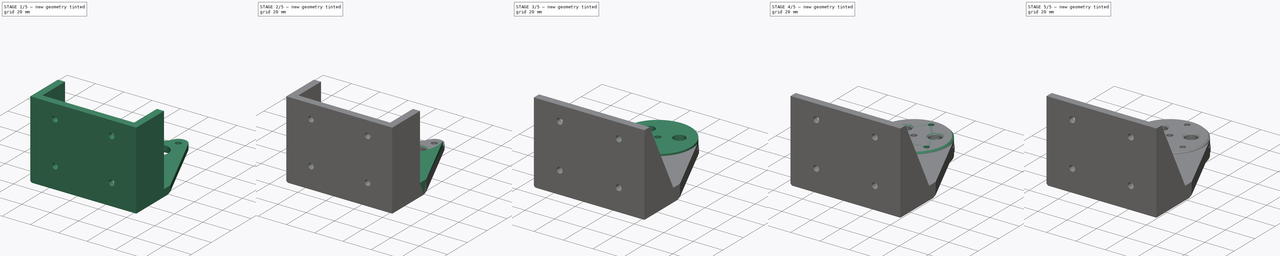
[diagram: build sequence overview — one tinted view per stage of 5, left to right]
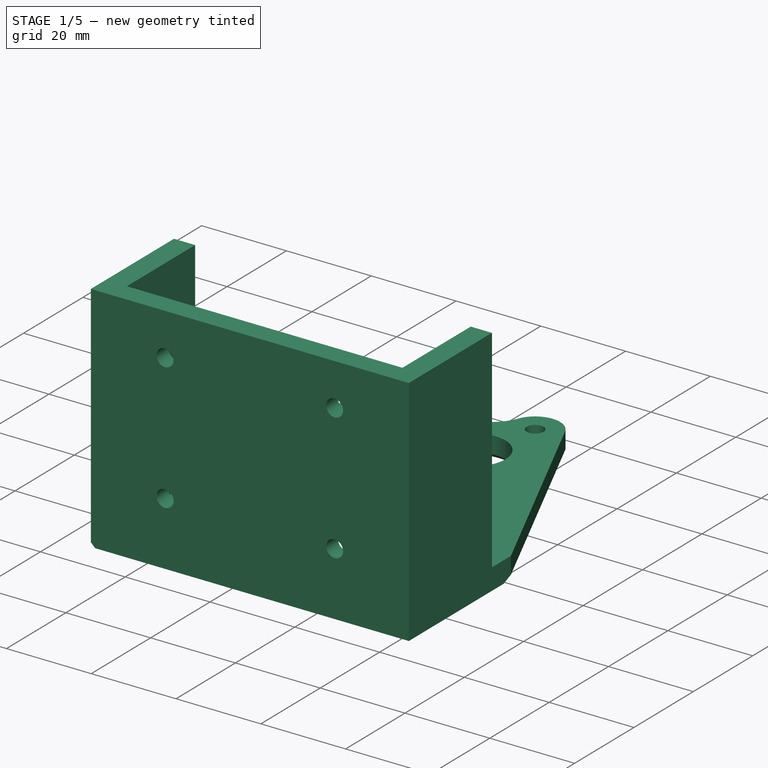
[diagram: stage 1 of 5 — iso view after this stage's code; geometry added in this stage tinted green]
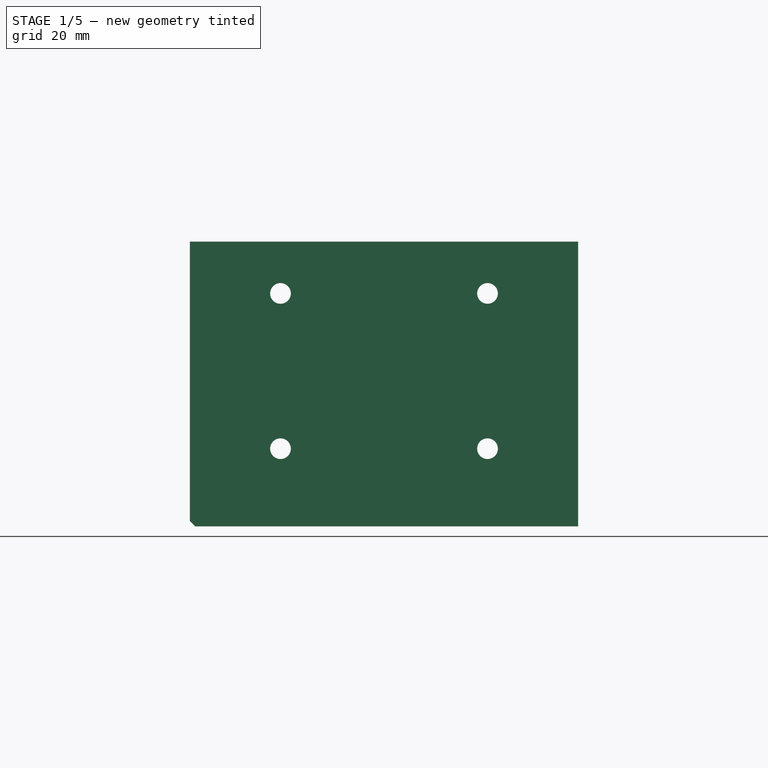
[diagram: stage 1 of 5 — front view after this stage's code; geometry added in this stage tinted green]
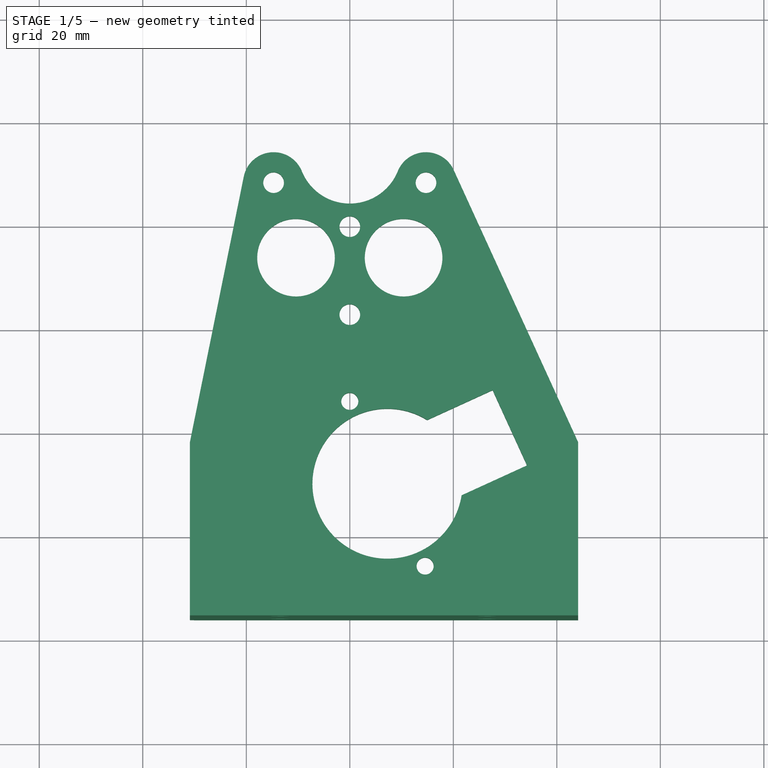
[diagram: stage 1 of 5 — top view after this stage's code; geometry added in this stage tinted green]
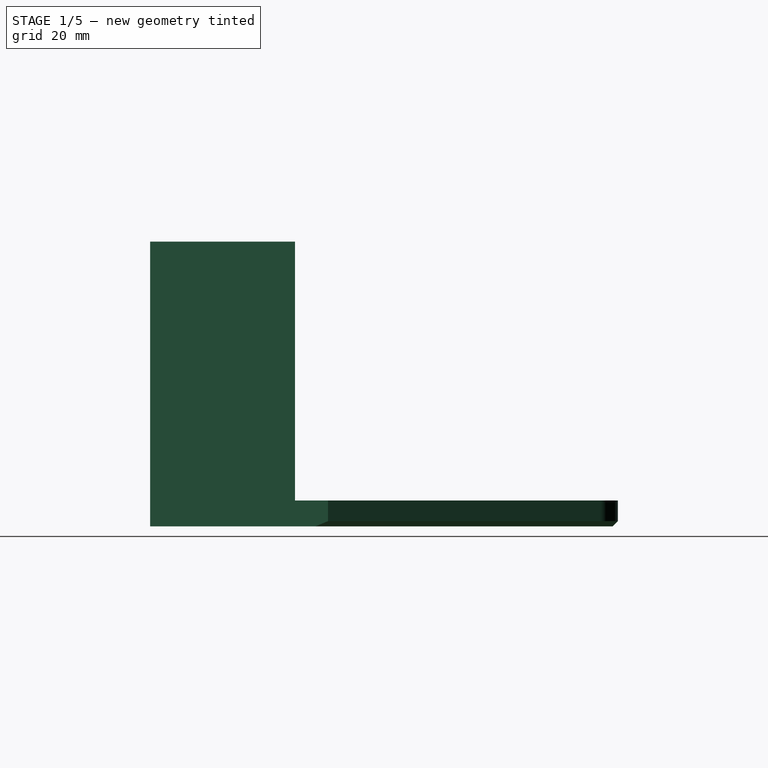
[diagram: stage 1 of 5 — right view after this stage's code; geometry added in this stage tinted green]
FCSTD DOCUMENT  (FreeCAD 1.0R38806 (Git))
Label: Valve
License: All rights reserved
LicenseURL: https://en.wikipedia.org/wiki/All_rights_reserved
objects: Sketcher::SketchObject×16, PartDesign::Chamfer×13, PartDesign::Pocket×10, PartDesign::Pad×6, PartDesign::Body×4, PartDesign::Fillet×2, PartDesign::FeaturePython×1
note: 131 computed .brp shape members not serialized (recipe doc carries the construction recipe); baked Part::Feature solids carry a one-line shape summary decoded from their .brp

FEATURE [PartDesign::Body] Body003  label="stationary_housing"
  AllowCompound = false
  Group = -> [Sketch006,Pad002,Sketch007,Pocket002,Sketch008,Pocket003,Sketch009,Pocket004,Chamfer003,Chamfer004,Chamfer005,Chamfer006]
  Origin = -> Origin003
  Placement = pos=(0,0,0) rot=(0,0,1;1.0472rad)
  Tip = -> Chamfer006
FEATURE [Sketcher::SketchObject] Sketch010
  ArcFitTolerance = 1e-06
  AttachmentSupport = -> [XY_Plane004]
  FullyConstrained = false
  MakeInternals = false
  MapMode = 5
  sketch-geometry (40):
    g0: Circle [constr] CenterX=0 CenterY=0 CenterZ=0 NormalX=0 NormalY=0 NormalZ=1 AngleXU=0 Radius=22
    g1: Circle [constr] CenterX=0 CenterY=-53 CenterZ=0 NormalX=0 NormalY=0 NormalZ=1 AngleXU=0 Radius=6.5
    g2: LineSegment [constr] StartX=6.21582 StartY=-54.9009 StartZ=0 EndX=21.0382 EndY=-6.43396 EndZ=0
    g3: LineSegment [constr] StartX=-6.21582 StartY=-54.9009 StartZ=0 EndX=-21.0382 EndY=-6.43396 EndZ=0
    g4: LineSegment [constr] StartX=0 StartY=0 StartZ=0 EndX=0 EndY=-53 EndZ=0
    g5: Circle [constr] CenterX=0 CenterY=-53 CenterZ=0 NormalX=0 NormalY=0 NormalZ=1 AngleXU=0 Radius=9
    g6: Circle CenterX=0 CenterY=0 CenterZ=0 NormalX=0 NormalY=0 NormalZ=1 AngleXU=0 Radius=2
    g7: Circle [constr] CenterX=0 CenterY=12 CenterZ=0 NormalX=0 NormalY=0 NormalZ=1 AngleXU=0 Radius=4.42235
    g8: Circle [constr] CenterX=10.3923 CenterY=-6 CenterZ=0 NormalX=0 NormalY=0 NormalZ=1 AngleXU=0 Radius=3.99316
    g9: Circle [constr] CenterX=-10.3923 CenterY=-6 CenterZ=0 NormalX=0 NormalY=0 NormalZ=1 AngleXU=0 Radius=3.67635
    g10: Circle [constr] CenterX=0 CenterY=0 CenterZ=0 NormalX=0 NormalY=0 NormalZ=1 AngleXU=0 Radius=17
    g11: Circle CenterX=-14.7224 CenterY=8.5 CenterZ=0 NormalX=0 NormalY=0 NormalZ=1 AngleXU=0 Radius=2
    g12: Circle CenterX=14.7224 CenterY=8.5 CenterZ=0 NormalX=0 NormalY=0 NormalZ=1 AngleXU=0 Radius=2
    g13: Circle CenterX=0 CenterY=-17 CenterZ=0 NormalX=0 NormalY=0 NormalZ=1 AngleXU=0 Radius=2
    g14: ArcOfCircle CenterX=0 CenterY=14.4564 CenterZ=0 NormalX=0 NormalY=0 NormalZ=1 AngleXU=0 Radius=10 StartAngle=3.52604 EndAngle=5.89874
    g15: ArcOfCircle CenterX=14.7224 CenterY=8.5 CenterZ=0 NormalX=0 NormalY=0 NormalZ=1 AngleXU=0 Radius=5.88171 StartAngle=0.428778 EndAngle=2.75714
    g16: LineSegment [constr] StartX=-14.7224 StartY=8.5 StartZ=0 EndX=14.7224 EndY=8.5 EndZ=0
    g17: LineSegment [constr] StartX=14.7224 StartY=8.5 StartZ=0 EndX=0 EndY=-17 EndZ=0
    g18: ArcOfCircle CenterX=-14.7224 CenterY=8.5 CenterZ=0 NormalX=0 NormalY=0 NormalZ=1 AngleXU=0 Radius=5.88171 StartAngle=0.384448 EndAngle=2.94147
    g19: LineSegment StartX=-20.4868 StartY=9.6692 StartZ=0 EndX=-30.8925 EndY=-41.6329 EndZ=0
    g20: LineSegment StartX=20.0717 StartY=10.9454 StartZ=0 EndX=44.1075 EndY=-41.6329 EndZ=0
    g21: LineSegment StartX=44.1075 StartY=-41.6329 StartZ=0 EndX=44.1075 EndY=-76 EndZ=0
    g22: LineSegment StartX=44.1075 StartY=-76 StartZ=0 EndX=-30.8925 EndY=-76 EndZ=0
    g23: LineSegment StartX=-30.8925 StartY=-76 StartZ=0 EndX=-30.8925 EndY=-41.6329 EndZ=0
    g24: Circle [constr] CenterX=7.2758 CenterY=-49.6739 CenterZ=0 NormalX=0 NormalY=0 NormalZ=1 AngleXU=0 Radius=14
    g25: LineSegment [constr] StartX=14.5516 StartY=-65.5897 StartZ=0 EndX=0 EndY=-33.7581 EndZ=0
    g26: LineSegment [constr] StartX=0 StartY=-53 StartZ=0 EndX=7.2758 EndY=-49.6739 EndZ=0
    g27: Circle CenterX=14.5516 CenterY=-65.5897 CenterZ=0 NormalX=0 NormalY=0 NormalZ=1 AngleXU=0 Radius=1.65
    g28: Circle CenterX=0 CenterY=-33.7581 CenterZ=0 NormalX=0 NormalY=0 NormalZ=1 AngleXU=0 Radius=1.65
    g29: Circle [constr] CenterX=0 CenterY=0 CenterZ=0 NormalX=0 NormalY=0 NormalZ=1 AngleXU=0 Radius=12
    g30: LineSegment [constr] StartX=-10.3923 StartY=-6 StartZ=0 EndX=10.3923 EndY=-6 EndZ=0
    g31: LineSegment [constr] StartX=10.3923 StartY=-6 StartZ=0 EndX=0 EndY=12 EndZ=0
    g32: Circle CenterX=10.3923 CenterY=-6 CenterZ=0 NormalX=0 NormalY=0 NormalZ=1 AngleXU=0 Radius=7.5
    g33: Circle CenterX=-10.3923 CenterY=-6 CenterZ=0 NormalX=0 NormalY=0 NormalZ=1 AngleXU=0 Radius=7.5
    g34: ArcOfCircle CenterX=7.2758 CenterY=-49.6739 CenterZ=0 NormalX=0 NormalY=0 NormalZ=1 AngleXU=0 Radius=14.5 StartAngle=1.01321 EndAngle=6.12753
    g35: LineSegment [constr] StartX=14.9483 StartY=-37.3702 StartZ=0 EndX=21.6005 EndY=-51.9218 EndZ=0
    g36: LineSegment StartX=14.9483 StartY=-37.3702 StartZ=0 EndX=27.5961 EndY=-31.5884 EndZ=0
    g37: LineSegment StartX=27.5961 StartY=-31.5884 StartZ=0 EndX=34.2482 EndY=-46.14 EndZ=0
    g38: LineSegment StartX=21.6005 StartY=-51.9218 StartZ=0 EndX=34.2482 EndY=-46.14 EndZ=0
    g39: LineSegment [constr] StartX=44.1075 StartY=-71 StartZ=0 EndX=-30.8925 EndY=-71 EndZ=0
  constraints (99):
    c: Coincident(g0,g-1)
    c: Diameter(g0) = 44
    c: PointOnObject(g1,g-2)
    c: Diameter(g1) = 13
    c: Tangent(g3,g0) = 1.5708
    c: Tangent(g3,g1) = 1.5708
    c: Tangent(g2,g1) = -1.5708
    c: Tangent(g2,g0) = -1.5708
    c: Distance(g3,g3) = 50.6828
    c: Coincident(g4,g0)
    c: Coincident(g4,g1)
    c: DistanceY(g4,g4) = 53
    c: Coincident(g5,g1)
    c: Diameter(g5) = 18
    c: Coincident(g6,g0)
    c: Diameter(g6) = 4
    c: PointOnObject(g7,g-2)
    c: Coincident(g10,g0)
    c: Diameter(g10) = 34
    c: PointOnObject(g11,g10)
    c: PointOnObject(g12,g10)
    c: PointOnObject(g13,g10)
    c: PointOnObject(g13,g-2)
    c: Equal(g13,g12)
    c: Equal(g12,g11)
    c: Diameter(g11) = 4
    c: PointOnObject(g14,g-2)
    c: Coincident(g15,g12)
    c: Coincident(g16,g11)
    c: Coincident(g16,g12)
    c: Coincident(g17,g12)
    c: Coincident(g17,g13)
    c: Equal(g17,g16)
    c: Horizontal(g16)
    c: Coincident(g18,g11)
    c: Tangent(g15,g14) = 1.5708
    c: Tangent(g18,g14) = 1.5708
    c: Tangent(g19,g0)
    c: Tangent(g20,g15) = 1.5708
    c: Tangent(g19,g18) = -1.5708
    c: Coincident(g21,g20)
    c: Vertical(g21)
    c: Coincident(g22,g21)
    c: Horizontal(g22)
    c: Coincident(g23,g22)
    c: Coincident(g23,g19)
    c: Vertical(g23)
    c: Distance(g1,g24) = 8
    c: Diameter(g24) = 28
    c: Coincident(g26,g1)
    c: Symmetric(g25,g25,g26)
    c: Perpendicular(g25,g26)
    c: PointOnObject(g24,g26)
    c: PointOnObject(g24,g25)
    c: Distance(g25,g25) = 35
    c: Coincident(g27,g25)
    c: Coincident(g28,g25)
    c: Equal(g27,g28)
    c: Diameter(g27) = 3.3
    c: PointOnObject(g25,g-2)
    c: DistanceX(g22,g22) = 75
    c: Coincident(g29,g0)
    c: PointOnObject(g8,g29)
    c: PointOnObject(g7,g29)
    c: PointOnObject(g9,g29)
    c: Coincident(g30,g9)
    c: Coincident(g30,g8)
    c: Horizontal(g30)
    c: Coincident(g31,g8)
    c: Coincident(g31,g7)
    c: Equal(g30,g31)
    c: Diameter(g29) = 24
    c: Radius(g14) = 10
    c: Coincident(g32,g8)
    c: Coincident(g33,g9)
    c: Equal(g33,g32)
    c: Diameter(g32) = 15
    c: Coincident(g34,g24)
    c: Coincident(g35,g34)
    c: Coincident(g35,g34)
    c: Distance(g35,g35) = 16
    c: Parallel(g35,g25)
    c: Diameter(g34) = 29
    c: Coincident(g36,g34)
    c: Coincident(g37,g36)
    c: Coincident(g38,g34)
    c: Coincident(g38,g37)
    c: Parallel(g36,g38)
    c: Perpendicular(g35,g36)
    c: Parallel(g37,g35)
    c: Distance(g36,g25) = 26
    c: PointOnObject(g39,g21)
    c: PointOnObject(g39,g23)
    c: Horizontal(g39)
    c: Distance(g39,g22) = 5
    c: DistanceY(g39,g1) = 18
    c: Parallel(g35,g20)
    c: Horizontal(g19,g20)
    c: PointOnObject(g20,g38)
FEATURE [PartDesign::Pad] Pad003
  Direction = (0,0,1)
  Length = 5
  Length2 = 10
  Profile = -> Sketch010
  ReferenceAxis = -> Sketch010 [N_Axis]
  Refine = true
  Suppressed = false
  Type = 0
FEATURE [Sketcher::SketchObject] Sketch011
  ArcFitTolerance = 1e-06
  FullyConstrained = true
  MakeInternals = false
  MapMode = 5
  Placement = pos=(0,0,5) rot=(0,0,1;0rad)
  sketch-geometry (9):
    g0: LineSegment StartX=44.1075 StartY=-48 StartZ=0 EndX=39.1075 EndY=-48 EndZ=0
    g1: LineSegment StartX=39.1075 StartY=-48 StartZ=0 EndX=39.1075 EndY=-71 EndZ=0
    g2: LineSegment StartX=39.1075 StartY=-71 StartZ=0 EndX=-25.8925 EndY=-71 EndZ=0
    g3: LineSegment StartX=-25.8925 StartY=-71 StartZ=0 EndX=-25.8925 EndY=-48 EndZ=0
    g4: LineSegment StartX=-25.8925 StartY=-48 StartZ=0 EndX=-30.8925 EndY=-48 EndZ=0
    g5: LineSegment StartX=-30.8925 StartY=-48 StartZ=0 EndX=-30.8925 EndY=-76 EndZ=0
    g6: LineSegment StartX=-30.8925 StartY=-76 StartZ=0 EndX=44.1075 EndY=-76 EndZ=0
    g7: LineSegment StartX=44.1075 StartY=-76 StartZ=0 EndX=44.1075 EndY=-48 EndZ=0
    g8: LineSegment [constr] StartX=39.1075 StartY=-71 StartZ=0 EndX=44.1075 EndY=-76 EndZ=0
  constraints (24):
    c: PointOnObject(g0,g-5)
    c: Horizontal(g0)
    c: Coincident(g0,g1)
    c: Vertical(g1)
    c: Coincident(g1,g2)
    c: Horizontal(g2)
    c: Coincident(g2,g3)
    c: Vertical(g3)
    c: Coincident(g3,g4)
    c: PointOnObject(g4,g-3)
    c: Horizontal(g4)
    c: Coincident(g4,g5)
    c: Coincident(g5,g-4)
    c: Coincident(g5,g6)
    c: Coincident(g6,g-5)
    c: Coincident(g6,g7)
    c: Coincident(g7,g0)
    c: Horizontal(g0,g3)
    c: Coincident(g8,g1)
    c: Coincident(g8,g6)
    c: Angle(g8,g6) = 0.785398
    c: Distance(g0,g0) = 5
    c: DistanceY(g7,g7) = 28
    c: Equal(g4,g0)
FEATURE [PartDesign::Pad] Pad004
  BaseFeature = -> Pad003
  Direction = (0,0,1)
  Length = 50
  Length2 = 10
  Profile = -> Sketch011
  ReferenceAxis = -> Sketch011 [N_Axis]
  Refine = true
  Suppressed = false
  Type = 0
FEATURE [Sketcher::SketchObject] Sketch013
  ArcFitTolerance = 1e-06
  FullyConstrained = true
  MakeInternals = false
  MapMode = 5
  Placement = pos=(0,-71,0) rot=(0,0.707107,0.707107;3.14159rad)
  sketch-geometry (11):
    g0: Circle CenterX=13.3925 CenterY=45 CenterZ=0 NormalX=0 NormalY=0 NormalZ=1 AngleXU=0 Radius=2
    g1: LineSegment [constr] StartX=-26.6075 StartY=15 StartZ=0 EndX=13.3925 EndY=15 EndZ=0
    g2: LineSegment [constr] StartX=13.3925 StartY=15 StartZ=0 EndX=13.3925 EndY=45 EndZ=0
    g3: LineSegment [constr] StartX=13.3925 StartY=45 StartZ=0 EndX=-26.6075 EndY=45 EndZ=0
    g4: LineSegment [constr] StartX=-26.6075 StartY=45 StartZ=0 EndX=-26.6075 EndY=15 EndZ=0
    g5: GeomPoint [constr] X=-6.60747 Y=30 Z=0
    g6: LineSegment [constr] StartX=25.8925 StartY=5 StartZ=0 EndX=-39.1075 EndY=55 EndZ=0
    g7: LineSegment [constr] StartX=25.8925 StartY=55 StartZ=0 EndX=-39.1075 EndY=5 EndZ=0
    g8: Circle CenterX=13.3925 CenterY=15 CenterZ=0 NormalX=0 NormalY=0 NormalZ=1 AngleXU=0 Radius=2
    g9: Circle CenterX=-26.6075 CenterY=15 CenterZ=0 NormalX=0 NormalY=0 NormalZ=1 AngleXU=0 Radius=2
    g10: Circle CenterX=-26.6075 CenterY=45 CenterZ=0 NormalX=0 NormalY=0 NormalZ=1 AngleXU=0 Radius=2
  constraints (25):
    c: Coincident(g1,g2)
    c: Coincident(g2,g3)
    c: Coincident(g3,g4)
    c: Coincident(g4,g1)
    c: Horizontal(g1)
    c: Horizontal(g3)
    c: Vertical(g2)
    c: Vertical(g4)
    c: Symmetric(g3,g1,g5)
    c: Coincident(g2,g0)
    c: Coincident(g6,g-4)
    c: Coincident(g6,g-3)
    c: Coincident(g7,g-4)
    c: Coincident(g7,g-3)
    c: Distance(g3,g3) = 40
    c: PointOnObject(g5,g6)
    c: PointOnObject(g5,g7)
    c: DistanceY(g2,g2) = 30
    c: Diameter(g0) = 4
    c: Coincident(g8,g1)
    c: Coincident(g9,g1)
    c: Coincident(g10,g3)
    c: Equal(g10,g0)
    c: Equal(g0,g8)
    c: Equal(g8,g9)
FEATURE [PartDesign::Pocket] Pocket006
  BaseFeature = -> Pad004
  Direction = (0,-1,2e-16)
  Length = 5
  Length2 = 5
  Profile = -> Sketch013
  ReferenceAxis = -> Sketch013 [N_Axis]
  Refine = true
  Suppressed = false
  Type = 1
FEATURE [PartDesign::Chamfer] Chamfer008
  Angle = 45
  Base = -> Pocket006 [Edge82,Edge80,Edge81,Edge83]
  BaseFeature = -> Pocket006
  ChamferType = 0
  FlipDirection = false
  Refine = true
  Size = 1
  Size2 = 1
  SupportTransform = false
  Suppressed = false
  UseAllEdges = false
FEATURE [PartDesign::Chamfer] Chamfer009
  Angle = 45
  Base = -> Chamfer008 [Edge67,Edge64,Edge66]
  BaseFeature = -> Chamfer008
  ChamferType = 0
  FlipDirection = false
  Refine = true
  Size = 1
  Size2 = 1
  SupportTransform = false
  Suppressed = false
  UseAllEdges = false
FEATURE [PartDesign::Chamfer] Chamfer010
  Angle = 45
  Base = -> Chamfer009 [Edge51,Edge50,Edge54,Edge55,Edge52,Edge53]
  BaseFeature = -> Chamfer009
  ChamferType = 0
  FlipDirection = false
  Refine = true
  Size = 1
  Size2 = 1
  SupportTransform = false
  Suppressed = false
  UseAllEdges = false
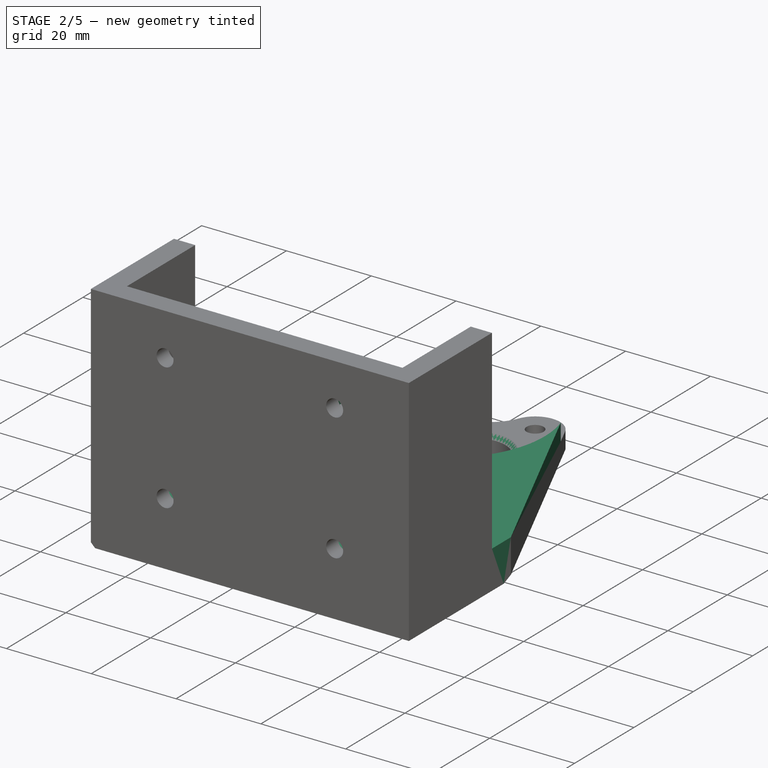
[diagram: stage 2 of 5 — iso view after this stage's code; geometry added in this stage tinted green]
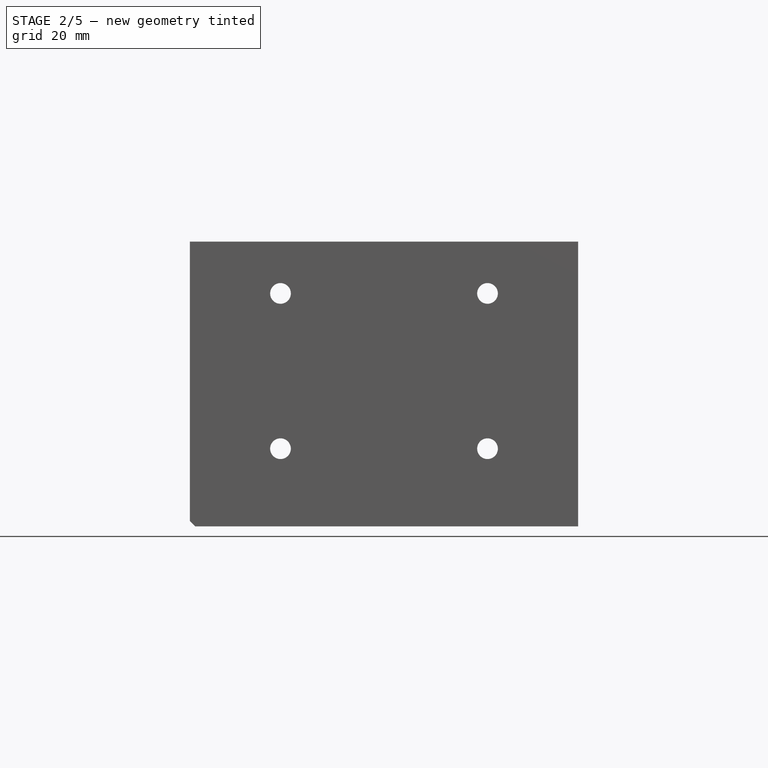
[diagram: stage 2 of 5 — front view after this stage's code; geometry added in this stage tinted green]
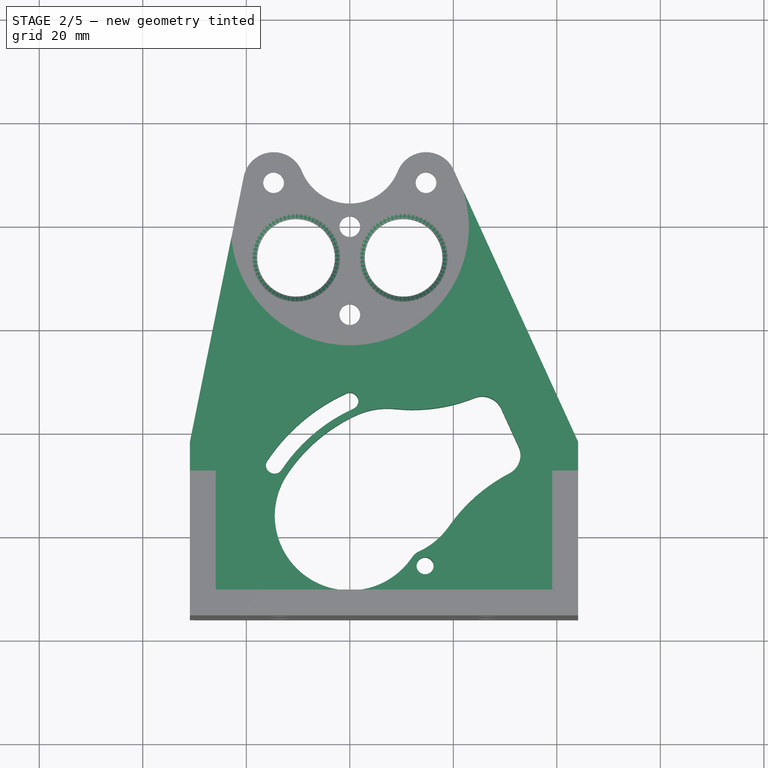
[diagram: stage 2 of 5 — top view after this stage's code; geometry added in this stage tinted green]
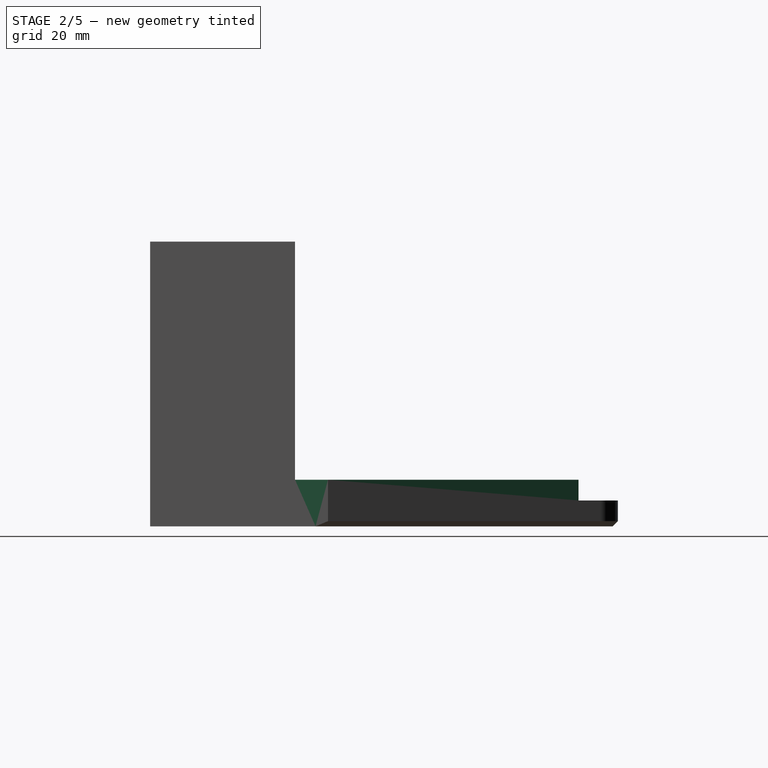
[diagram: stage 2 of 5 — right view after this stage's code; geometry added in this stage tinted green]
FEATURE [PartDesign::Chamfer] Chamfer011
  Angle = 45
  Base = -> Chamfer010 [Edge84,Edge70]
  BaseFeature = -> Chamfer010
  ChamferType = 0
  FlipDirection = false
  Refine = true
  Size = 1
  Size2 = 1
  SupportTransform = false
  Suppressed = false
  UseAllEdges = false
FEATURE [Sketcher::SketchObject] Sketch014
  ArcFitTolerance = 1e-06
  AttachmentSupport = -> [Chamfer011]
  FullyConstrained = true
  MakeInternals = false
  MapMode = 5
  Placement = pos=(0,0,5) rot=(0,0,1;0rad)
  sketch-geometry (4):
    g0: ArcOfCircle CenterX=12.1061 CenterY=-2.79713 CenterZ=0 NormalX=0 NormalY=0 NormalZ=1 AngleXU=0 Radius=32.625 StartAngle=4.60971 EndAngle=5.14117
    g1: ArcOfCircle CenterX=45.8866 CenterY=-76.6919 CenterZ=0 NormalX=0 NormalY=0 NormalZ=1 AngleXU=0 Radius=32.625 StartAngle=1.99957 EndAngle=2.53103
    g2: LineSegment StartX=8.76204 StartY=-35.2503 StartZ=0 EndX=19.156 EndY=-57.9872 EndZ=0
    g3: LineSegment StartX=32.3224 StartY=-47.0203 StartZ=0 EndX=25.6703 EndY=-32.4687 EndZ=0
  constraints (10):
    c: Tangent(g0,g-3) = 1.5708
    c: Tangent(g0,g-4) = -1.5708
    c: Tangent(g1,g-5) = 1.5708
    c: Tangent(g1,g-6) = 1.5708
    c: Equal(g1,g0)
    c: Coincident(g2,g0)
    c: Coincident(g2,g1)
    c: Coincident(g3,g1)
    c: Coincident(g3,g0)
    c: Distance(g2,g2) = 25
FEATURE [PartDesign::Pocket] Pocket007
  BaseFeature = -> Chamfer011
  Direction = (0,0,-1)
  Length = 5
  Length2 = 5
  Profile = -> Sketch014
  ReferenceAxis = -> Sketch014 [N_Axis]
  Refine = true
  Suppressed = false
  Type = 1
FEATURE [Sketcher::SketchObject] Sketch015
  ArcFitTolerance = 1e-06
  AttachmentSupport = -> [Pocket007]
  ExternalGeometry = -> [Pocket007]
  FullyConstrained = true
  MakeInternals = false
  MapMode = 5
  Placement = pos=(0,0,5) rot=(0,0,1;0rad)
  sketch-geometry (14):
    g0: Circle [constr] CenterX=0 CenterY=-55.8686 CenterZ=0 NormalX=0 NormalY=0 NormalZ=1 AngleXU=0 Radius=14.5
    g1: LineSegment [constr] StartX=14.5516 StartY=-65.5897 StartZ=0 EndX=7.2758 EndY=-49.6739 EndZ=0
    g2: LineSegment [constr] StartX=14.5516 StartY=-65.5897 StartZ=0 EndX=0 EndY=-55.8686 EndZ=0
    g3: LineSegment [constr] StartX=7.2758 StartY=-49.6739 StartZ=0 EndX=0 EndY=-33.7581 EndZ=0
    g4: LineSegment [constr] StartX=0 StartY=-55.8686 StartZ=0 EndX=-14.5516 EndY=-46.1474 EndZ=0
    g5: Circle [constr] CenterX=-14.5516 CenterY=-46.1474 CenterZ=0 NormalX=0 NormalY=0 NormalZ=1 AngleXU=0 Radius=1.65
    g6: ArcOfCircle CenterX=14.5516 CenterY=-65.5897 CenterZ=0 NormalX=0 NormalY=0 NormalZ=1 AngleXU=0 Radius=33.35 StartAngle=1.99957 EndAngle=2.55263
    g7: ArcOfCircle CenterX=14.5516 CenterY=-65.5897 CenterZ=0 NormalX=0 NormalY=0 NormalZ=1 AngleXU=0 Radius=36.65 StartAngle=1.99957 EndAngle=2.55263
    g8: ArcOfCircle CenterX=-14.5516 CenterY=-46.1474 CenterZ=0 NormalX=0 NormalY=0 NormalZ=1 AngleXU=0 Radius=1.65 StartAngle=2.55263 EndAngle=5.69423
    g9: ArcOfCircle CenterX=0 CenterY=-33.7581 CenterZ=0 NormalX=0 NormalY=0 NormalZ=1 AngleXU=0 Radius=1.65 StartAngle=5.14117 EndAngle=8.28276
    g10: ArcOfCircle CenterX=14.5516 CenterY=-65.5897 CenterZ=0 NormalX=0 NormalY=0 NormalZ=1 AngleXU=0 Radius=32 StartAngle=1.99957 EndAngle=2.55263
    g11: ArcOfCircle CenterX=0 CenterY=-55.8686 CenterZ=0 NormalX=0 NormalY=0 NormalZ=1 AngleXU=0 Radius=14.5 StartAngle=2.55263 EndAngle=5.69423
    g12: ArcOfCircle CenterX=14.5516 CenterY=-65.5897 CenterZ=0 NormalX=0 NormalY=0 NormalZ=1 AngleXU=0 Radius=3 StartAngle=1.99957 EndAngle=2.55264
    g13: LineSegment StartX=13.3043 StartY=-62.8613 StartZ=0 EndX=1.24728 EndY=-36.4865 EndZ=0
  constraints (35):
    c: Radius(g-4) = 14.5
    c: Equal(g0,g-4)
    c: Coincident(g1,g-7)
    c: Coincident(g1,g-4)
    c: Coincident(g2,g1)
    c: Coincident(g3,g1)
    c: Coincident(g3,g-6)
    c: Equal(g2,g1)
    c: Coincident(g0,g2)
    c: Coincident(g4,g0)
    c: Parallel(g2,g4)
    c: Coincident(g5,g4)
    c: Coincident(g6,g1)
    c: Tangent(g6,g-6) = 1.5708
    c: Tangent(g6,g5) = 1.5708
    c: Coincident(g7,g1)
    c: Tangent(g7,g-6) = -1.5708
    c: Tangent(g7,g5) = -1.5708
    c: Coincident(g9,g3)
    c: Coincident(g9,g7)
    c: Coincident(g8,g6)
    c: Coincident(g8,g7)
    c: PointOnObject(g0,g-2)
    c: Equal(g5,g8)
    c: PointOnObject(g9,g6)
    c: Coincident(g10,g1)
    c: PointOnObject(g10,g4)
    c: Tangent(g10,g-3) = -1.5708
    c: Coincident(g11,g0)
    c: Coincident(g11,g10)
    c: Coincident(g12,g1)
    c: Coincident(g13,g12)
    c: Coincident(g13,g10)
    c: Coincident(g12,g11)
    c: Tangent(g12,g-4) = 1.5708
FEATURE [PartDesign::Pocket] Pocket008
  BaseFeature = -> Pocket007
  Direction = (0,0,-1)
  Length = 5
  Length2 = 5
  Profile = -> Sketch015
  ReferenceAxis = -> Sketch015 [N_Axis]
  Refine = true
  Suppressed = false
  Type = 1
FEATURE [PartDesign::Pad] Pad005
  BaseFeature = -> Pocket008
  Direction = (0,0,1)
  Length = 4
  Length2 = 10
  Profile = -> Pocket008 [Face4]
  Refine = true
  Suppressed = false
  Type = 0
FEATURE [Sketcher::SketchObject] Sketch017
  ArcFitTolerance = 1e-06
  AttachmentSupport = -> [Pad005]
  FullyConstrained = true
  MakeInternals = false
  MapMode = 5
  Placement = pos=(0,0,9) rot=(0,0,1;0rad)
  sketch-geometry (1):
    g0: Circle CenterX=0 CenterY=0 CenterZ=0 NormalX=0 NormalY=0 NormalZ=1 AngleXU=0 Radius=23
  constraints (2):
    c: Coincident(g0,g-1)
    c: Diameter(g0) = 46
FEATURE [PartDesign::Pocket] Pocket009
  BaseFeature = -> Pad005
  Direction = (0,0,-1)
  Length = 4
  Length2 = 5
  Profile = -> Sketch017
  ReferenceAxis = -> Sketch017 [N_Axis]
  Refine = true
  Suppressed = false
  Type = 0
FEATURE [PartDesign::Fillet] Fillet
  Base = -> Pocket009 [Edge119]
  BaseFeature = -> Pocket009
  Radius = 4
  Refine = true
  SupportTransform = false
  Suppressed = false
  UseAllEdges = false
FEATURE [PartDesign::Fillet] Fillet001
  Base = -> Fillet [Edge32]
  BaseFeature = -> Fillet
  Radius = 4
  Refine = true
  SupportTransform = false
  Suppressed = false
  UseAllEdges = false
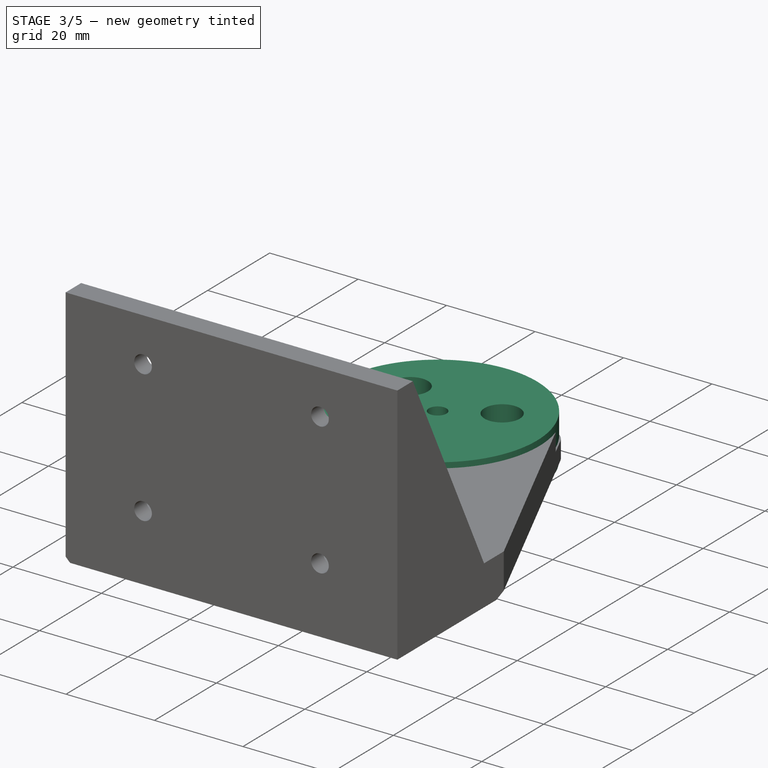
[diagram: stage 3 of 5 — iso view after this stage's code; geometry added in this stage tinted green]
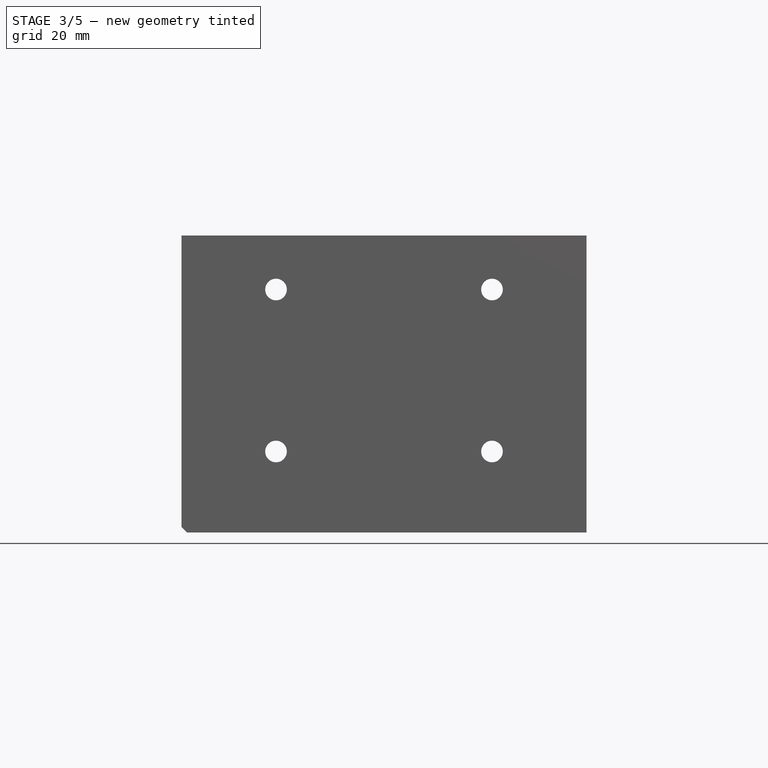
[diagram: stage 3 of 5 — front view after this stage's code; geometry added in this stage tinted green]
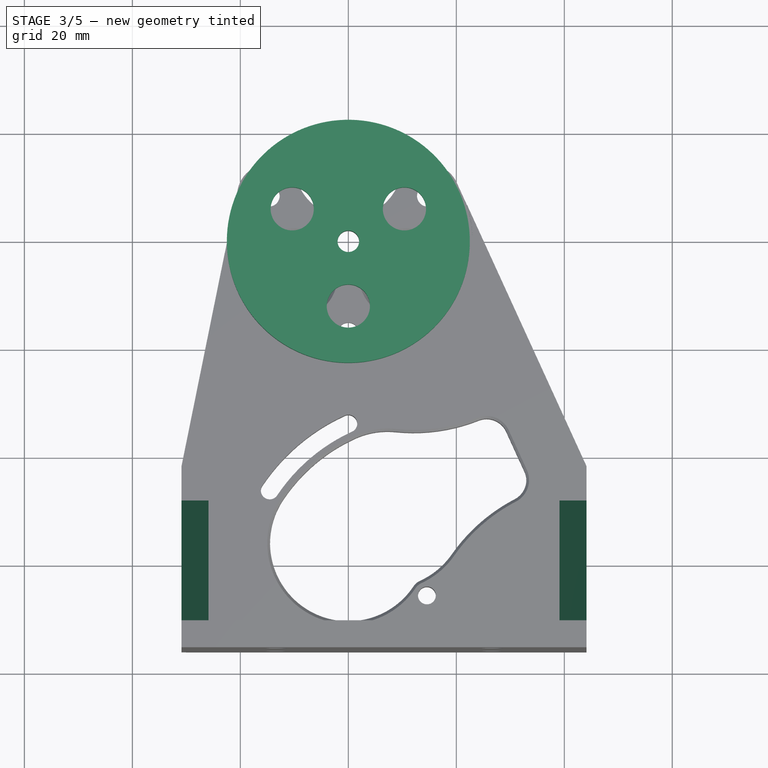
[diagram: stage 3 of 5 — top view after this stage's code; geometry added in this stage tinted green]
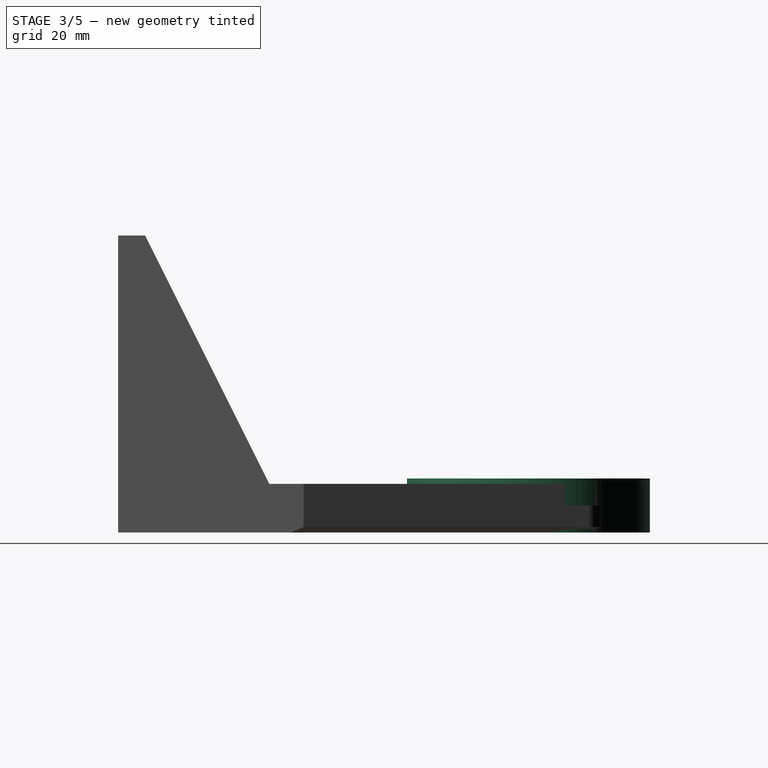
[diagram: stage 3 of 5 — right view after this stage's code; geometry added in this stage tinted green]
FEATURE [PartDesign::Body] Body002  label="mobile_housing"
  AllowCompound = false
  Group = -> [TimingGear,Sketch001,Pad,Sketch002,Pad001,Sketch003,Pocket,Sketch004,Pocket001,Chamfer,Chamfer001,Chamfer002]
  Origin = -> Origin002
  Placement = pos=(1.4e-15,0,-5) rot=(0.5,0.866025,0;3.14159rad)
  Tip = -> Chamfer002
FEATURE [Sketcher::SketchObject] Sketch006
  ArcFitTolerance = 1e-06
  AttachmentSupport = -> [XY_Plane003]
  FullyConstrained = true
  MakeInternals = false
  MapMode = 5
  sketch-geometry (1):
    g0: Circle CenterX=0 CenterY=0 CenterZ=0 NormalX=0 NormalY=0 NormalZ=1 AngleXU=0 Radius=22.5
  constraints (2):
    c: Coincident(g0,g-1)
    c: Diameter(g0) = 45
FEATURE [PartDesign::Pad] Pad002
  Direction = (0,0,1)
  Length = 10
  Length2 = 10
  Profile = -> Sketch006
  ReferenceAxis = -> Sketch006 [N_Axis]
  Refine = true
  Suppressed = false
  Type = 0
FEATURE [Sketcher::SketchObject] Sketch007
  ArcFitTolerance = 1e-06
  AttachmentSupport = -> [Pad002]
  FullyConstrained = true
  MakeInternals = false
  MapMode = 5
  Placement = pos=(0,0,0) rot=(1,0,0;3.14159rad)
  sketch-geometry (1):
    g0: Circle CenterX=0 CenterY=0 CenterZ=0 NormalX=0 NormalY=0 NormalZ=1 AngleXU=0 Radius=20
  constraints (2):
    c: Coincident(g0,g-1)
    c: Diameter(g0) = 40
FEATURE [PartDesign::Pocket] Pocket002
  BaseFeature = -> Pad002
  Direction = (0,0,1)
  Length = 5
  Length2 = 5
  Profile = -> Sketch007
  ReferenceAxis = -> Sketch007 [N_Axis]
  Refine = true
  Suppressed = false
  Type = 0
FEATURE [Sketcher::SketchObject] Sketch008
  ArcFitTolerance = 1e-06
  AttachmentSupport = -> [Pocket002]
  FullyConstrained = true
  MakeInternals = false
  MapMode = 5
  Placement = pos=(0,0,5) rot=(1,0,0;3.14159rad)
  sketch-geometry (7):
    g0: Circle CenterX=0 CenterY=12 CenterZ=0 NormalX=0 NormalY=0 NormalZ=1 AngleXU=0 Radius=4
    g1: Circle [constr] CenterX=0 CenterY=0 CenterZ=0 NormalX=0 NormalY=0 NormalZ=1 AngleXU=0 Radius=12
    g2: Circle CenterX=0 CenterY=0 CenterZ=0 NormalX=0 NormalY=0 NormalZ=1 AngleXU=0 Radius=2
    g3: Circle CenterX=10.3923 CenterY=-6 CenterZ=0 NormalX=0 NormalY=0 NormalZ=1 AngleXU=0 Radius=4
    g4: Circle CenterX=-10.3923 CenterY=-6 CenterZ=0 NormalX=0 NormalY=0 NormalZ=1 AngleXU=0 Radius=4
    g5: LineSegment [constr] StartX=-10.3923 StartY=-6 StartZ=0 EndX=10.3923 EndY=-6 EndZ=0
    g6: LineSegment [constr] StartX=10.3923 StartY=-6 StartZ=0 EndX=0 EndY=12 EndZ=0
  constraints (17):
    c: PointOnObject(g0,g-2)
    c: Diameter(g0) = 8
    c: Coincident(g1,g-1)
    c: PointOnObject(g0,g1)
    c: Diameter(g1) = 24
    c: Coincident(g2,g1)
    c: Diameter(g2) = 4
    c: PointOnObject(g3,g1)
    c: PointOnObject(g4,g1)
    c: Coincident(g5,g4)
    c: Coincident(g5,g3)
    c: Horizontal(g5)
    c: Coincident(g6,g3)
    c: Coincident(g6,g0)
    c: Equal(g5,g6)
    c: Equal(g3,g4)
    c: Equal(g4,g0)
FEATURE [PartDesign::Pocket] Pocket003
  BaseFeature = -> Pocket002
  Direction = (0,0,1)
  Length = 5
  Length2 = 5
  Profile = -> Sketch008
  ReferenceAxis = -> Sketch008 [N_Axis]
  Refine = true
  Suppressed = false
  Type = 0
FEATURE [Sketcher::SketchObject] Sketch018
  ArcFitTolerance = 1e-06
  AttachmentSupport = -> [Fillet001]
  ExternalGeometry = -> [Fillet001]
  FullyConstrained = true
  MakeInternals = false
  MapMode = 5
  Placement = pos=(-30.8925,1.246e-13,-1.196e-13) rot=(-0.57735,0.57735,0.57735;4.18879rad)
  sketch-geometry (3):
    g0: LineSegment StartX=48 StartY=9 StartZ=0 EndX=48 EndY=55 EndZ=0
    g1: LineSegment StartX=48 StartY=55 StartZ=0 EndX=71 EndY=55 EndZ=0
    g2: LineSegment StartX=71 StartY=55 StartZ=0 EndX=48 EndY=9 EndZ=0
  constraints (6):
    c: Coincident(g-3,g0)
    c: Coincident(g0,g-5)
    c: Coincident(g0,g1)
    c: Coincident(g1,g-5)
    c: Coincident(g1,g2)
    c: Coincident(g2,g0)
FEATURE [PartDesign::Pocket] Pocket010
  BaseFeature = -> Fillet001
  Direction = (1,-4.2e-15,3.9e-15)
  Length = 5
  Length2 = 5
  Profile = -> Sketch018
  ReferenceAxis = -> Sketch018 [N_Axis]
  Refine = true
  Suppressed = false
  Type = 1
FEATURE [PartDesign::Chamfer] Chamfer012
  Angle = 45
  Base = -> Pocket010 [Edge5]
  BaseFeature = -> Pocket010
  ChamferType = 0
  FlipDirection = false
  Refine = true
  Size = 0.5
  Size2 = 1
  SupportTransform = false
  Suppressed = false
  UseAllEdges = false
FEATURE [PartDesign::Chamfer] Chamfer013
  Angle = 45
  Base = -> Chamfer012 [Edge104]
  BaseFeature = -> Chamfer012
  ChamferType = 0
  FlipDirection = false
  Refine = true
  Size = 0.5
  Size2 = 1
  SupportTransform = false
  Suppressed = false
  UseAllEdges = false
FEATURE [PartDesign::Body] Body004  label="valve_base"
  AllowCompound = false
  Group = -> [Sketch010,Pad003,Sketch011,Pad004,Sketch013,Pocket006,Chamfer008,Chamfer009,Chamfer010,Chamfer011,Sketch014,Pocket007,Sketch015,Pocket008,Pad005,Sketch017,Pocket009,Fillet,Fillet001,Sketch018,Pocket010,Chamfer012,Chamfer013]
  Origin = -> Origin004
  Placement = pos=(-1.8e-15,0,15) rot=(0,1,0;3.14159rad)
  Tip = -> Chamfer013
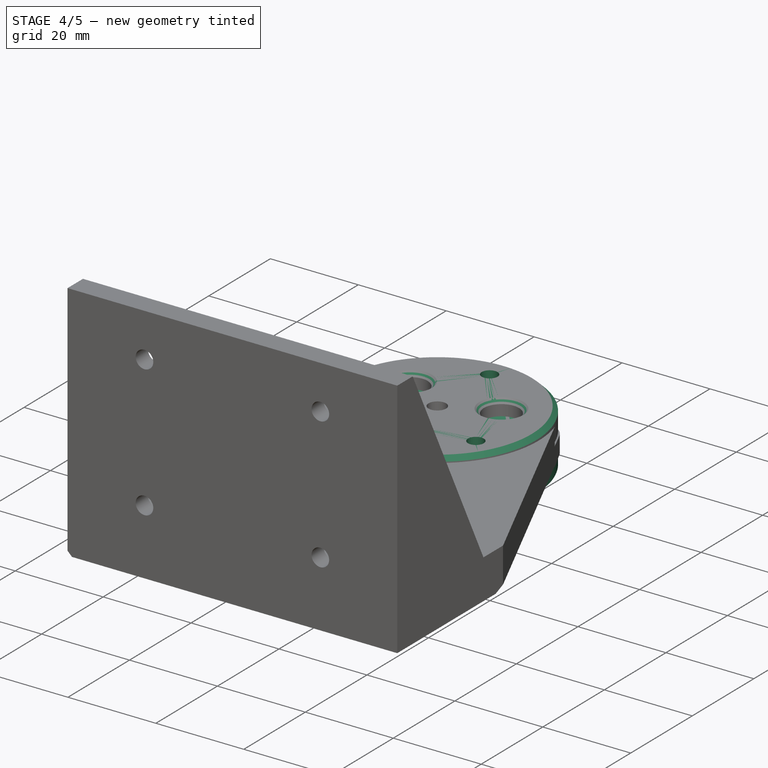
[diagram: stage 4 of 5 — iso view after this stage's code; geometry added in this stage tinted green]
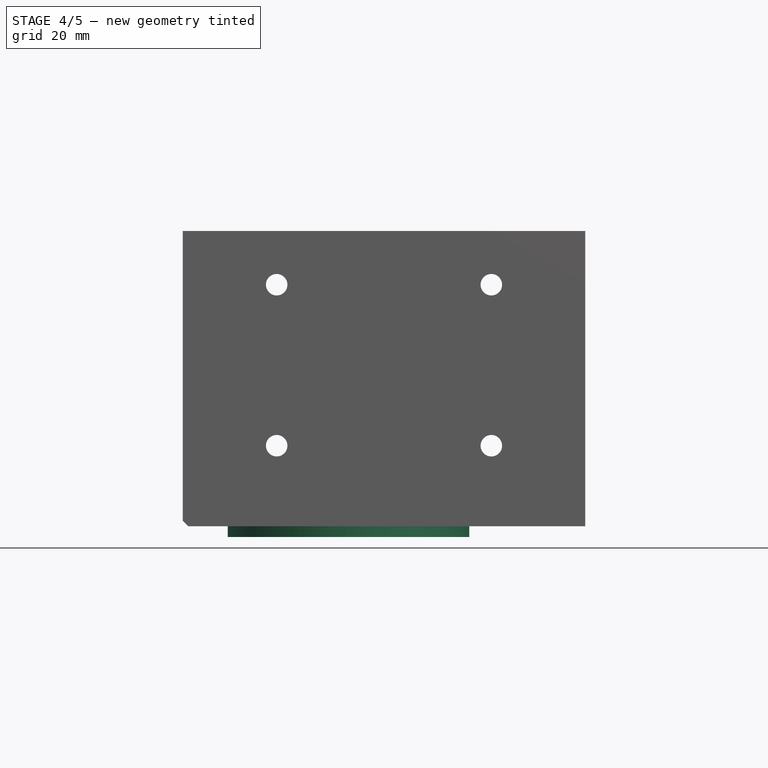
[diagram: stage 4 of 5 — front view after this stage's code; geometry added in this stage tinted green]
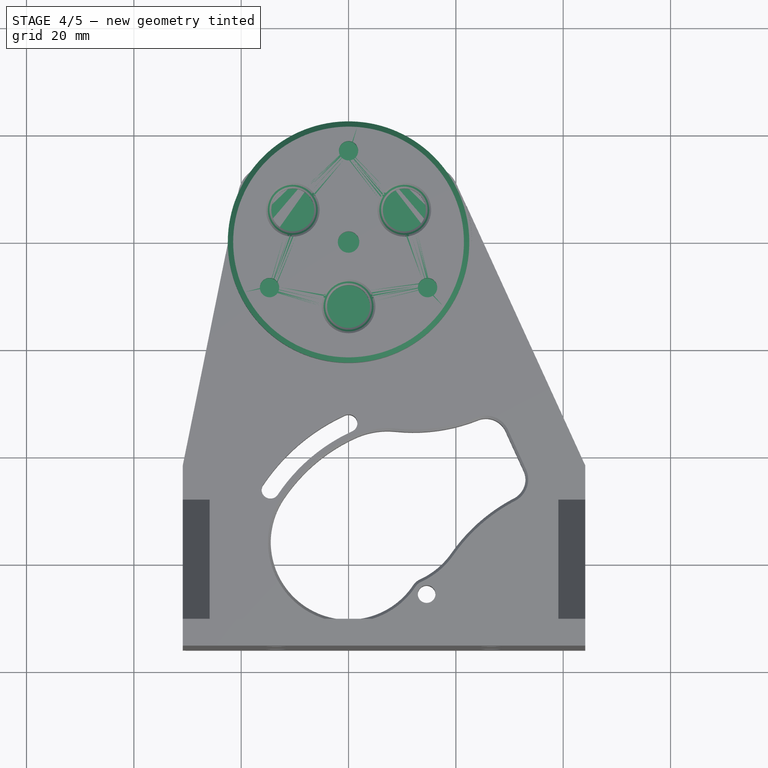
[diagram: stage 4 of 5 — top view after this stage's code; geometry added in this stage tinted green]
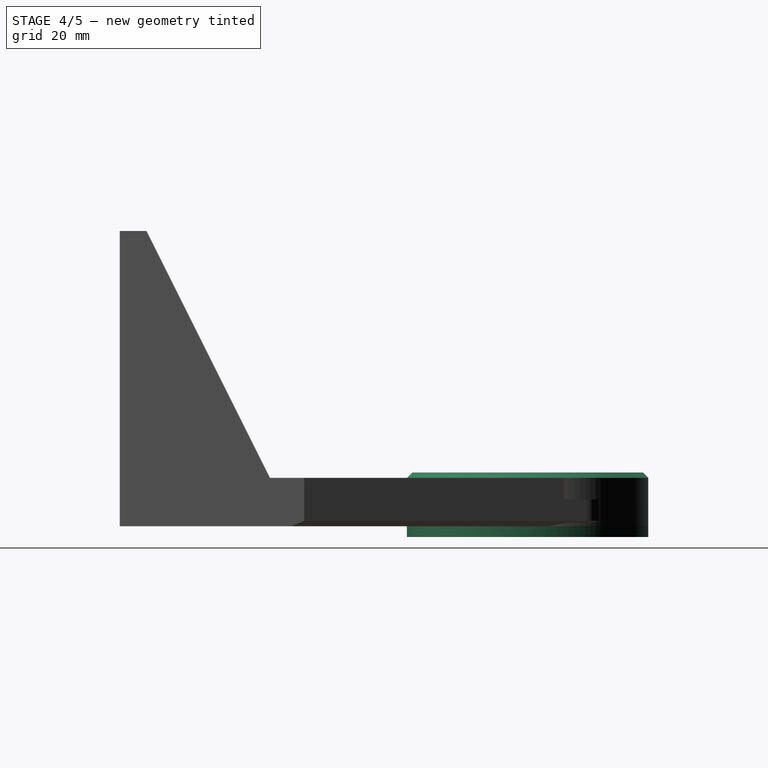
[diagram: stage 4 of 5 — right view after this stage's code; geometry added in this stage tinted green]
FEATURE [Sketcher::SketchObject] Sketch
  ArcFitTolerance = 1e-06
  FullyConstrained = true
  MakeInternals = false
  MapMode = 5
  Placement = pos=(0,0,-3) rot=(1,0,0;3.14159rad)
  sketch-geometry (17):
    g0: Circle [constr] CenterX=0 CenterY=0 CenterZ=0 NormalX=0 NormalY=0 NormalZ=1 AngleXU=0 Radius=12
    g1: Circle CenterX=0 CenterY=0 CenterZ=0 NormalX=0 NormalY=0 NormalZ=1 AngleXU=0 Radius=2
    g2: Circle CenterX=0 CenterY=12 CenterZ=0 NormalX=0 NormalY=0 NormalZ=1 AngleXU=0 Radius=3.3
    g3: Circle CenterX=10.3923 CenterY=-6 CenterZ=0 NormalX=0 NormalY=0 NormalZ=1 AngleXU=0 Radius=3.3
    g4: Circle CenterX=-10.3923 CenterY=-6 CenterZ=0 NormalX=0 NormalY=0 NormalZ=1 AngleXU=0 Radius=3.3
    g5: LineSegment [constr] StartX=-10.3923 StartY=-6 StartZ=0 EndX=10.3923 EndY=-6 EndZ=0
    g6: LineSegment [constr] StartX=10.3923 StartY=-6 StartZ=0 EndX=0 EndY=12 EndZ=0
    g7: Circle [constr] CenterX=0 CenterY=0 CenterZ=0 NormalX=0 NormalY=0 NormalZ=1 AngleXU=0 Radius=4
    g8: Circle [constr] CenterX=10.3923 CenterY=-6 CenterZ=0 NormalX=0 NormalY=0 NormalZ=1 AngleXU=0 Radius=6
    g9: Circle CenterX=0 CenterY=0 CenterZ=0 NormalX=0 NormalY=0 NormalZ=1 AngleXU=0 Radius=19.5
    g10: Circle CenterX=0 CenterY=-17 CenterZ=0 NormalX=0 NormalY=0 NormalZ=1 AngleXU=0 Radius=1
    g11: Circle [constr] CenterX=0 CenterY=0 CenterZ=0 NormalX=0 NormalY=0 NormalZ=1 AngleXU=0 Radius=15.3
    g12: Circle [constr] CenterX=0 CenterY=0 CenterZ=0 NormalX=0 NormalY=0 NormalZ=1 AngleXU=0 Radius=17
    g13: Circle CenterX=-14.7224 CenterY=8.5 CenterZ=0 NormalX=0 NormalY=0 NormalZ=1 AngleXU=0 Radius=1
    g14: Circle CenterX=14.7224 CenterY=8.5 CenterZ=0 NormalX=0 NormalY=0 NormalZ=1 AngleXU=0 Radius=1
    g15: LineSegment [constr] StartX=0 StartY=-17 StartZ=0 EndX=14.7224 EndY=8.5 EndZ=0
    g16: LineSegment [constr] StartX=-14.7224 StartY=8.5 StartZ=0 EndX=14.7224 EndY=8.5 EndZ=0
  constraints (41):
    c: Coincident(g0,g-1)
    c: Coincident(g1,g0)
    c: PointOnObject(g2,g-2)
    c: PointOnObject(g2,g0)
    c: PointOnObject(g3,g0)
    c: PointOnObject(g4,g0)
    c: Equal(g4,g3)
    c: Equal(g3,g2)
    c: Coincident(g5,g4)
    c: Coincident(g5,g3)
    c: Horizontal(g5)
    c: Coincident(g6,g3)
    c: Coincident(g6,g2)
    c: Equal(g6,g5)
    c: Diameter(g3) = 6.6
    c: Distance(g1,g3) = 6.7
    c: Diameter(g1) = 4
    c: Coincident(g7,g0)
    c: Diameter(g7) = 8
    c: Coincident(g8,g3)
    c: Diameter(g8) = 12
    c: Coincident(g9,g0)
    c: Diameter(g0) = 24
    c: Diameter(g9) = 39
    c: PointOnObject(g10,g-2)
    c: Coincident(g11,g0)
    c: Tangent(g11,g2)
    c: Coincident(g12,g0)
    c: PointOnObject(g10,g12)
    c: Diameter(g12) = 34
    c: Diameter(g10) = 2
    c: PointOnObject(g13,g12)
    c: PointOnObject(g14,g12)
    c: Equal(g14,g13)
    c: Equal(g13,g10)
    c: Coincident(g15,g10)
    c: Coincident(g15,g14)
    c: Coincident(g16,g13)
    c: Coincident(g16,g14)
    c: Equal(g16,g15)
    c: Horizontal(g16)
FEATURE [PartDesign::Body] Body  label="valve_plate"
  AllowCompound = false
  Group = -> [Sketch]
  Origin = -> Origin
FEATURE [PartDesign::FeaturePython] TimingGear  # WARN: FeaturePython — macro-defined, semantics opaque (R4)
  AttacherType = Attacher::AttachEngine3D
  Suppressed = false
  h = 0.75
  height = 6.5
  num_teeth = 69
  offset = 0.4
  pitch = 2
  r0 = 0.555
  r1 = 1
  rs = 0.15
  type = 0
  u = 0.254
  version = 1.3.0
FEATURE [Sketcher::SketchObject] Sketch001
  ArcFitTolerance = 1e-06
  AttachmentSupport = -> [TimingGear]
  FullyConstrained = true
  MakeInternals = false
  MapMode = 5
  Placement = pos=(0,0,0) rot=(1,0,0;3.14159rad)
  sketch-geometry (1):
    g0: Circle CenterX=0 CenterY=0 CenterZ=0 NormalX=0 NormalY=0 NormalZ=1 AngleXU=0 Radius=22.5
  constraints (2):
    c: Coincident(g0,g-1)
    c: Diameter(g0) = 45
FEATURE [PartDesign::Pad] Pad
  BaseFeature = -> TimingGear
  Direction = (0,0,-1)
  Length = 2
  Length2 = 10
  Profile = -> Sketch001
  ReferenceAxis = -> Sketch001 [N_Axis]
  Refine = true
  Suppressed = false
  Type = 0
FEATURE [Sketcher::SketchObject] Sketch009
  ArcFitTolerance = 1e-06
  AttachmentSupport = -> [Pocket003]
  FullyConstrained = true
  MakeInternals = false
  MapMode = 5
  Placement = pos=(0,0,10) rot=(0,0,1;0rad)
  sketch-geometry (6):
    g0: Circle CenterX=0 CenterY=17 CenterZ=0 NormalX=0 NormalY=0 NormalZ=1 AngleXU=0 Radius=1.8
    g1: Circle [constr] CenterX=0 CenterY=0 CenterZ=0 NormalX=0 NormalY=0 NormalZ=1 AngleXU=0 Radius=17
    g2: Circle CenterX=14.7224 CenterY=-8.5 CenterZ=0 NormalX=0 NormalY=0 NormalZ=1 AngleXU=0 Radius=1.8
    g3: Circle CenterX=-14.7224 CenterY=-8.5 CenterZ=0 NormalX=0 NormalY=0 NormalZ=1 AngleXU=0 Radius=1.8
    g4: LineSegment [constr] StartX=-14.7224 StartY=-8.5 StartZ=0 EndX=14.7224 EndY=-8.5 EndZ=0
    g5: LineSegment [constr] StartX=14.7224 StartY=-8.5 StartZ=0 EndX=0 EndY=17 EndZ=0
  constraints (15):
    c: PointOnObject(g0,g-2)
    c: Diameter(g0) = 3.6
    c: Coincident(g1,g-1)
    c: PointOnObject(g0,g1)
    c: Diameter(g1) = 34
    c: PointOnObject(g2,g1)
    c: PointOnObject(g3,g1)
    c: Coincident(g4,g3)
    c: Coincident(g4,g2)
    c: Coincident(g5,g2)
    c: Coincident(g5,g0)
    c: Horizontal(g4)
    c: Equal(g4,g5)
    c: Equal(g2,g3)
    c: Equal(g3,g0)
FEATURE [PartDesign::Pocket] Pocket004
  BaseFeature = -> Pocket003
  Direction = (0,0,-1)
  Length = 5
  Length2 = 5
  Profile = -> Sketch009
  ReferenceAxis = -> Sketch009 [N_Axis]
  Refine = true
  Suppressed = false
  Type = 0
FEATURE [PartDesign::Chamfer] Chamfer003
  Angle = 45
  Base = -> Pocket004 [Edge27,Edge15,Edge19]
  BaseFeature = -> Pocket004
  ChamferType = 0
  FlipDirection = false
  Refine = true
  Size = 1
  Size2 = 1
  SupportTransform = false
  Suppressed = false
  UseAllEdges = false
FEATURE [PartDesign::Chamfer] Chamfer004
  Angle = 45
  Base = -> Chamfer003 [Edge16]
  BaseFeature = -> Chamfer003
  ChamferType = 0
  FlipDirection = false
  Refine = true
  Size = 1
  Size2 = 1
  SupportTransform = false
  Suppressed = false
  UseAllEdges = false
FEATURE [PartDesign::Chamfer] Chamfer005
  Angle = 45
  Base = -> Chamfer004 [Edge16,Edge20,Edge18]
  BaseFeature = -> Chamfer004
  ChamferType = 0
  FlipDirection = false
  Refine = true
  Size = 1
  Size2 = 1
  SupportTransform = false
  Suppressed = false
  UseAllEdges = false
FEATURE [PartDesign::Chamfer] Chamfer006
  Angle = 45
  Base = -> Chamfer005 [Edge13]
  BaseFeature = -> Chamfer005
  ChamferType = 0
  FlipDirection = false
  Refine = true
  Size = 1
  Size2 = 1
  SupportTransform = false
  Suppressed = false
  UseAllEdges = false
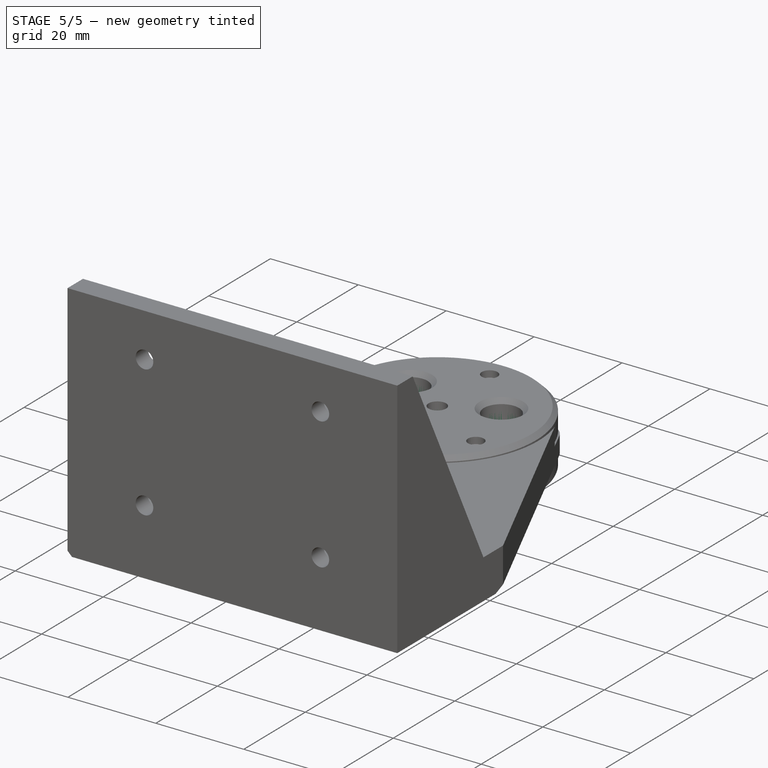
[diagram: stage 5 of 5 — iso view after this stage's code; geometry added in this stage tinted green]
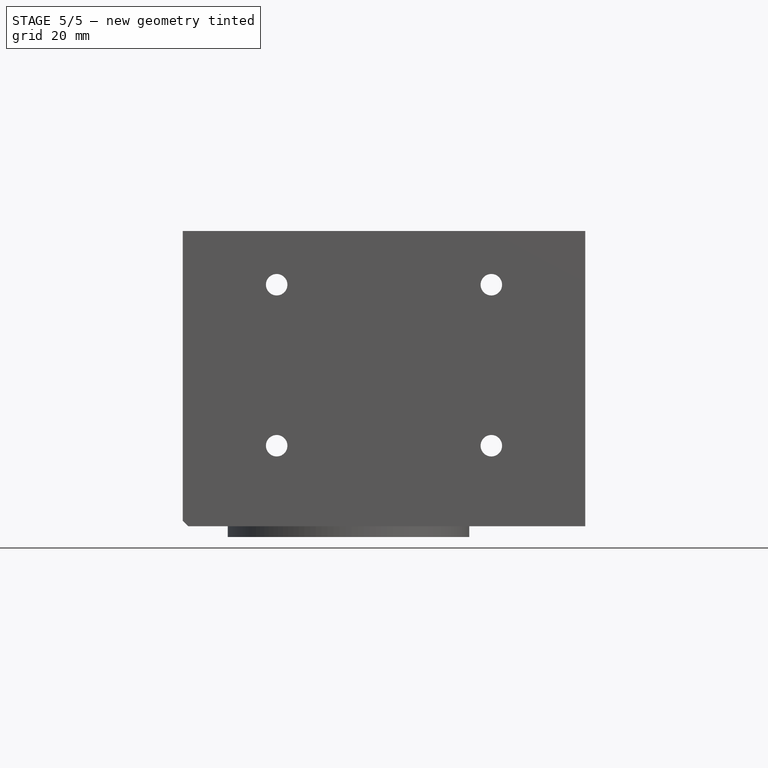
[diagram: stage 5 of 5 — front view after this stage's code; geometry added in this stage tinted green]
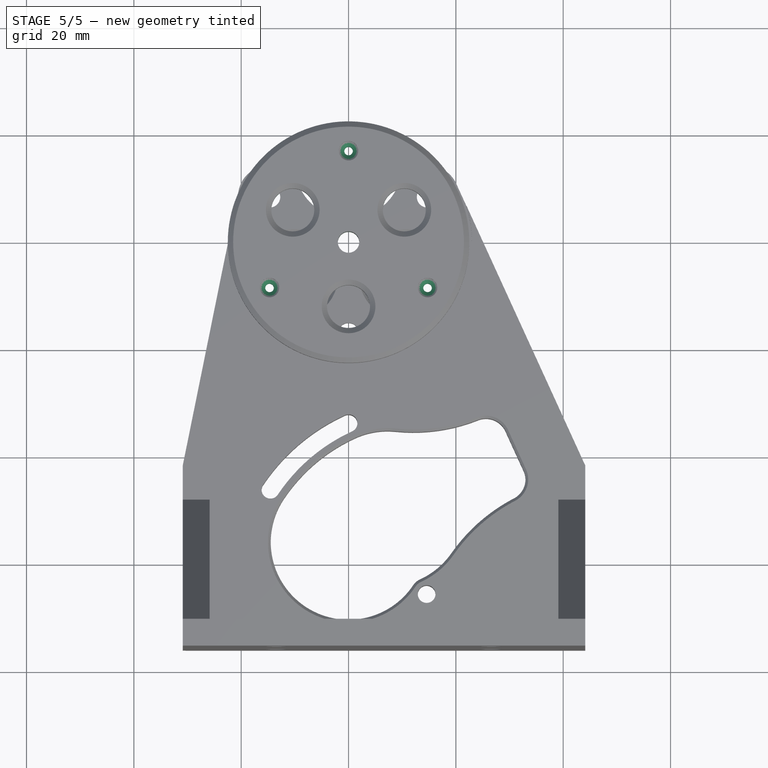
[diagram: stage 5 of 5 — top view after this stage's code; geometry added in this stage tinted green]
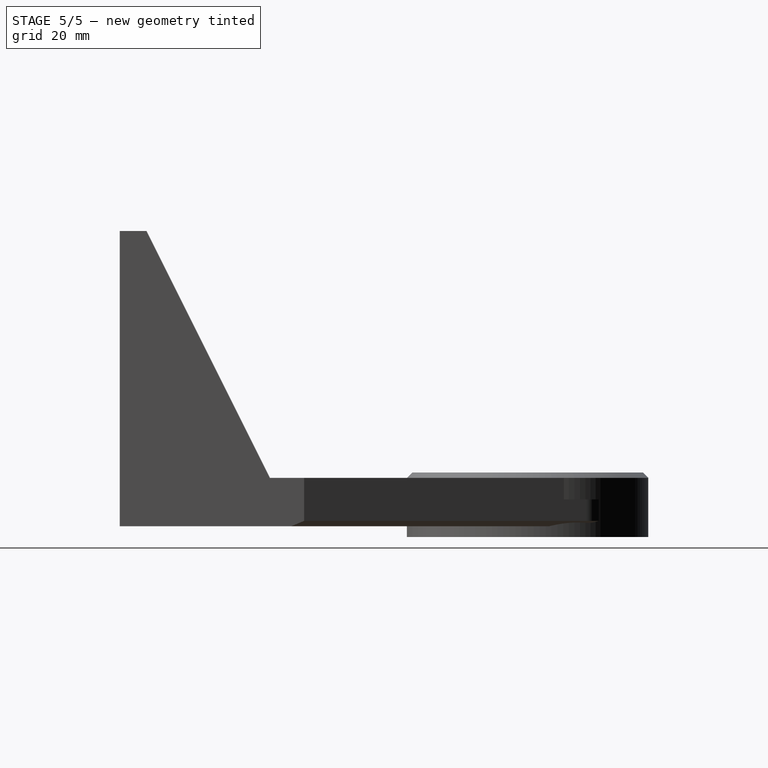
[diagram: stage 5 of 5 — right view after this stage's code; geometry added in this stage tinted green]
FEATURE [Sketcher::SketchObject] Sketch002
  ArcFitTolerance = 1e-06
  AttachmentSupport = -> [Pad]
  ExternalGeometry = -> [Pad]
  FullyConstrained = true
  MakeInternals = false
  MapMode = 5
  Placement = pos=(0,0,6.5) rot=(0,0,1;0rad)
  sketch-geometry (1):
    g0: Circle CenterX=0 CenterY=0 CenterZ=0 NormalX=0 NormalY=0 NormalZ=1 AngleXU=0 Radius=22.5
  constraints (2):
    c: Coincident(g0,g-1)
    c: Equal(g0,g-3)
FEATURE [PartDesign::Pad] Pad001
  BaseFeature = -> Pad
  Direction = (0,0,1)
  Length = 2
  Length2 = 10
  Profile = -> Sketch002
  ReferenceAxis = -> Sketch002 [N_Axis]
  Refine = true
  Suppressed = false
  Type = 0
FEATURE [Sketcher::SketchObject] Sketch003
  ArcFitTolerance = 1e-06
  AttachmentSupport = -> [Pad001]
  FullyConstrained = true
  MakeInternals = false
  MapMode = 5
  Placement = pos=(0,0,-2) rot=(1,0,0;3.14159rad)
  sketch-geometry (1):
    g0: Circle CenterX=0 CenterY=0 CenterZ=0 NormalX=0 NormalY=0 NormalZ=1 AngleXU=0 Radius=20
  constraints (2):
    c: Coincident(g0,g-1)
    c: Diameter(g0) = 40
FEATURE [PartDesign::Pocket] Pocket
  BaseFeature = -> Pad001
  Direction = (0,0,1)
  Length = 5
  Length2 = 5
  Profile = -> Sketch003
  ReferenceAxis = -> Sketch003 [N_Axis]
  Refine = true
  Suppressed = false
  Type = 0
FEATURE [Sketcher::SketchObject] Sketch004
  ArcFitTolerance = 1e-06
  AttachmentSupport = -> [Pocket]
  FullyConstrained = true
  MakeInternals = false
  MapMode = 5
  Placement = pos=(0,0,3) rot=(1,0,0;3.14159rad)
  sketch-geometry (15):
    g0: Circle CenterX=0 CenterY=0 CenterZ=0 NormalX=0 NormalY=0 NormalZ=1 AngleXU=0 Radius=2
    g1: Circle [constr] CenterX=0 CenterY=0 CenterZ=0 NormalX=0 NormalY=0 NormalZ=1 AngleXU=0 Radius=17
    g2: Circle CenterX=0 CenterY=-17 CenterZ=0 NormalX=0 NormalY=0 NormalZ=1 AngleXU=0 Radius=0.8
    g3: Circle CenterX=14.7224 CenterY=8.5 CenterZ=0 NormalX=0 NormalY=0 NormalZ=1 AngleXU=0 Radius=0.8
    g4: Circle CenterX=-14.7224 CenterY=8.5 CenterZ=0 NormalX=0 NormalY=0 NormalZ=1 AngleXU=0 Radius=0.8
    g5: LineSegment [constr] StartX=-14.7224 StartY=8.5 StartZ=0 EndX=14.7224 EndY=8.5 EndZ=0
    g6: LineSegment [constr] StartX=0 StartY=-17 StartZ=0 EndX=14.7224 EndY=8.5 EndZ=0
    g7: Circle CenterX=0 CenterY=12 CenterZ=0 NormalX=0 NormalY=0 NormalZ=1 AngleXU=0 Radius=4
    g8: Circle [constr] CenterX=0 CenterY=12 CenterZ=0 NormalX=0 NormalY=0 NormalZ=1 AngleXU=0 Radius=3
    g9: Circle [constr] CenterX=0 CenterY=0 CenterZ=0 NormalX=0 NormalY=0 NormalZ=1 AngleXU=0 Radius=16.2
    g10: Circle CenterX=10.3923 CenterY=-6 CenterZ=0 NormalX=0 NormalY=0 NormalZ=1 AngleXU=0 Radius=4
    g11: Circle CenterX=-10.3923 CenterY=-6 CenterZ=0 NormalX=0 NormalY=0 NormalZ=1 AngleXU=0 Radius=4
    g12: Circle [constr] CenterX=0 CenterY=0 CenterZ=0 NormalX=0 NormalY=0 NormalZ=1 AngleXU=0 Radius=12
    g13: LineSegment [constr] StartX=-10.3923 StartY=-6 StartZ=0 EndX=10.3923 EndY=-6 EndZ=0
    g14: LineSegment [constr] StartX=10.3923 StartY=-6 StartZ=0 EndX=0 EndY=12 EndZ=0
  constraints (36):
    c: Coincident(g0,g-1)
    c: Diameter(g0) = 4
    c: Coincident(g1,g0)
    c: Diameter(g1) = 34
    c: PointOnObject(g2,g-2)
    c: PointOnObject(g3,g1)
    c: PointOnObject(g4,g1)
    c: PointOnObject(g2,g1)
    c: Equal(g2,g3)
    c: Equal(g3,g4)
    c: Coincident(g5,g4)
    c: Coincident(g5,g3)
    c: Horizontal(g5)
    c: Coincident(g6,g2)
    c: Coincident(g6,g3)
    c: Equal(g5,g6)
    c: Diameter(g3) = 1.6
    c: PointOnObject(g7,g-2)
    c: Coincident(g8,g7)
    c: Diameter(g8) = 6
    c: Diameter(g7) = 8
    c: Coincident(g9,g0)
    c: Tangent(g9,g4)
    c: Equal(g10,g11)
    c: Equal(g11,g7)
    c: Coincident(g12,g0)
    c: PointOnObject(g7,g12)
    c: Diameter(g12) = 24
    c: PointOnObject(g11,g12)
    c: PointOnObject(g10,g12)
    c: Coincident(g13,g11)
    c: Coincident(g13,g10)
    c: Horizontal(g13)
    c: Coincident(g14,g10)
    c: Coincident(g14,g7)
    c: Equal(g14,g13)
FEATURE [PartDesign::Pocket] Pocket001
  BaseFeature = -> Pocket
  Direction = (0,0,1)
  Length = 7
  Length2 = 5
  Profile = -> Sketch004
  ReferenceAxis = -> Sketch004 [N_Axis]
  Refine = true
  Suppressed = false
  Type = 0
FEATURE [PartDesign::Chamfer] Chamfer
  Angle = 45
  Base = -> Pocket001 [Edge422,Edge419,Edge423,Edge424,Edge418,Edge420]
  BaseFeature = -> Pocket001
  ChamferType = 0
  FlipDirection = false
  Refine = true
  Size = 1
  Size2 = 1
  SupportTransform = false
  Suppressed = false
  UseAllEdges = false
FEATURE [PartDesign::Chamfer] Chamfer001
  Angle = 45
  Base = -> Chamfer [Edge442,Edge444,Edge446]
  BaseFeature = -> Chamfer
  ChamferType = 0
  FlipDirection = false
  Refine = true
  Size = 0.5
  Size2 = 1
  SupportTransform = false
  Suppressed = false
  UseAllEdges = false
FEATURE [PartDesign::Chamfer] Chamfer002
  Angle = 45
  Base = -> Chamfer001 [Edge4]
  BaseFeature = -> Chamfer001
  ChamferType = 0
  FlipDirection = false
  Refine = true
  Size = 1
  Size2 = 1
  SupportTransform = false
  Suppressed = false
  UseAllEdges = false
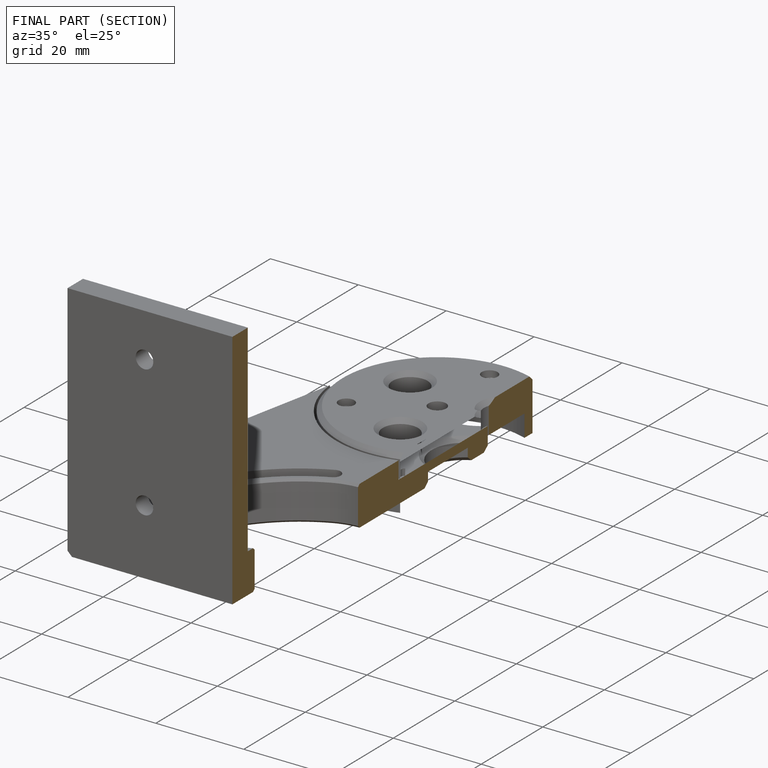
[diagram: finished part — half-section view (interior)]
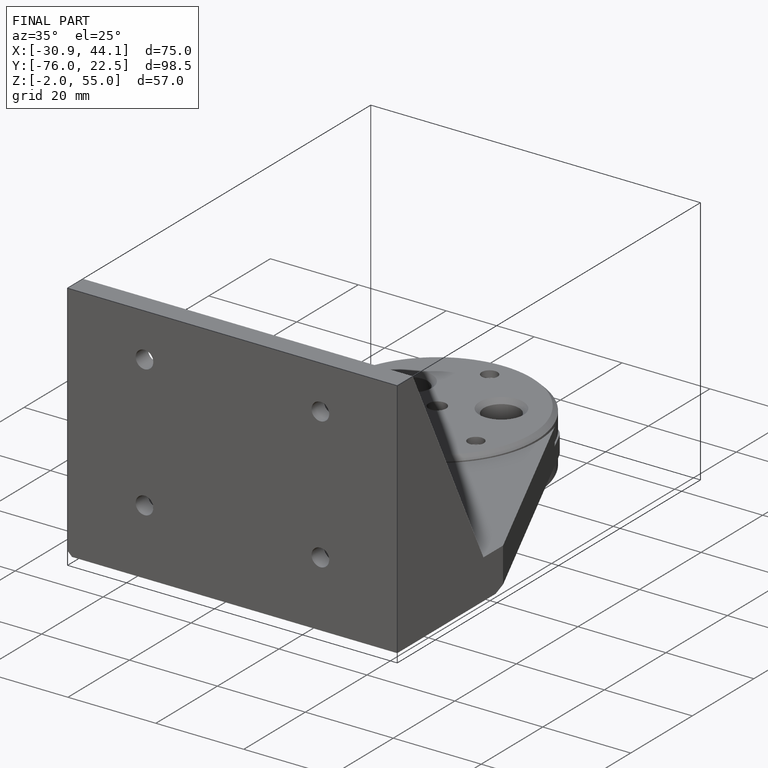
[diagram: finished part — iso view with bounding-box wireframe]
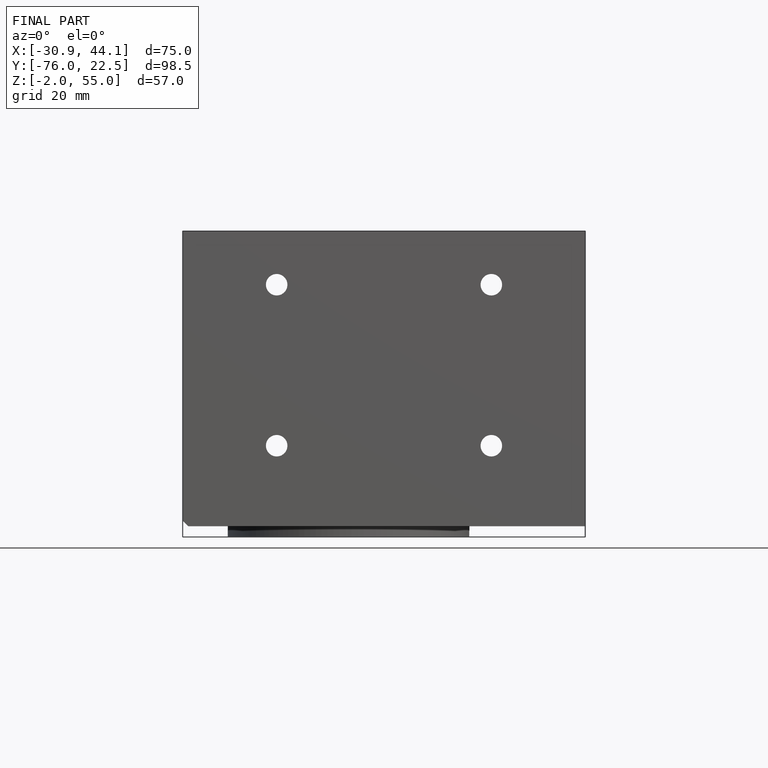
[diagram: finished part — front view with bounding-box wireframe]
